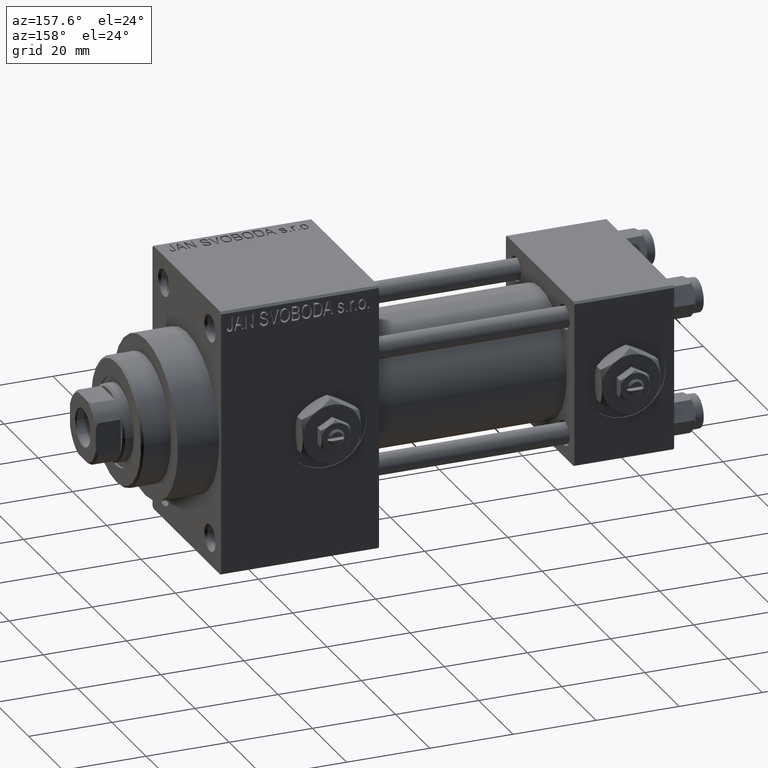
[diagram: clean part render]
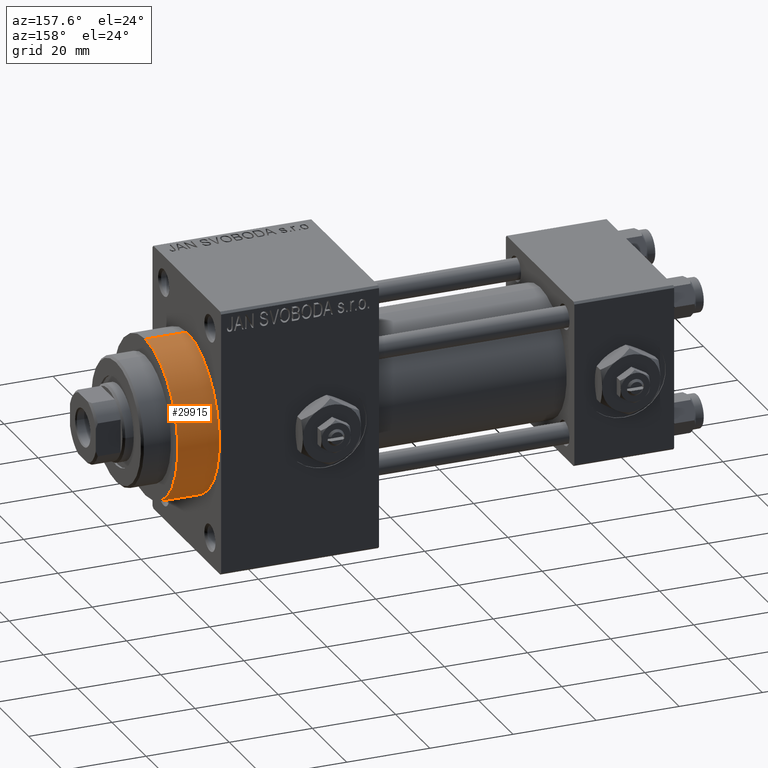
[diagram: same view with one face highlighted and labeled with its STEP entity id]
A machine part, auxiliary view. The second image highlights one B-rep face of the part: STEP entity #29915.
In plain terms, the highlighted cylindrical surface (partial cylindrical patch) has radius 19 mm, axis along (-1, -0, -0).
Its self-contained STEP definition (entity closure, byte-faithful):
#844 = CARTESIAN_POINT ( 'NONE',  ( 119.0000000000000142, 0.000000000000000000, 0.000000000000000000 ) ) ;
#3665 = EDGE_CURVE ( 'NONE', #22661, #48439, #44185, .T. ) ;
#3811 = DIRECTION ( 'NONE',  ( 1.000000000000000000, 0.000000000000000000, 0.000000000000000000 ) ) ;
#4081 = CYLINDRICAL_SURFACE ( 'NONE', #36028, 19.00000000000000000 ) ;
#4531 = DIRECTION ( 'NONE',  ( 0.000000000000000000, 0.000000000000000000, -1.000000000000000000 ) ) ;
#5385 = CIRCLE ( 'NONE', #37029, 19.00000000000000000 ) ;
#6525 = LINE ( 'NONE', #37224, #31615 ) ;
#9088 = LINE ( 'NONE', #27661, #32885 ) ;
#10065 = EDGE_CURVE ( 'NONE', #48439, #47141, #6525, .T. ) ;
#11517 = FACE_OUTER_BOUND ( 'NONE', #39811, .T. ) ;
#12637 = CARTESIAN_POINT ( 'NONE',  ( 109.0000000000000142, 0.000000000000000000, 19.00000000000000000 ) ) ;
#15439 = CARTESIAN_POINT ( 'NONE',  ( 119.0000000000000142, 0.000000000000000000, 0.000000000000000000 ) ) ;
#16769 = CARTESIAN_POINT ( 'NONE',  ( 119.0000000000000142, 0.000000000000000000, 19.00000000000000000 ) ) ;
#17795 = ORIENTED_EDGE ( 'NONE', *, *, #3665, .F. ) ;
#19719 = CARTESIAN_POINT ( 'NONE',  ( 109.0000000000000142, 0.000000000000000000, 0.000000000000000000 ) ) ;
#22278 = ORIENTED_EDGE ( 'NONE', *, *, #37597, .T. ) ;
#22661 = VERTEX_POINT ( 'NONE', #28310 ) ;
#24195 = DIRECTION ( 'NONE',  ( -1.000000000000000000, -0.000000000000000000, -0.000000000000000000 ) ) ;
#26615 = DIRECTION ( 'NONE',  ( 0.000000000000000000, 0.000000000000000000, 1.000000000000000000 ) ) ;
#27099 = DIRECTION ( 'NONE',  ( -1.000000000000000000, -0.000000000000000000, -0.000000000000000000 ) ) ;
#27154 = VERTEX_POINT ( 'NONE', #42776 ) ;
#27661 = CARTESIAN_POINT ( 'NONE',  ( 119.0000000000000142, 2.326828918379970970E-15, -19.00000000000000000 ) ) ;
#28310 = CARTESIAN_POINT ( 'NONE',  ( 119.0000000000000142, 2.326828918379970970E-15, -19.00000000000000000 ) ) ;
#29915 = ADVANCED_FACE ( 'NONE', ( #11517 ), #4081, .T. ) ;
#31615 = VECTOR ( 'NONE', #44661, 1000.000000000000000 ) ;
#31809 = DIRECTION ( 'NONE',  ( 0.000000000000000000, 0.000000000000000000, -1.000000000000000000 ) ) ;
#32885 = VECTOR ( 'NONE', #24195, 1000.000000000000000 ) ;
#34805 = DIRECTION ( 'NONE',  ( 1.000000000000000000, 0.000000000000000000, 0.000000000000000000 ) ) ;
#36028 = AXIS2_PLACEMENT_3D ( 'NONE', #844, #27099, #26615 ) ;
#37029 = AXIS2_PLACEMENT_3D ( 'NONE', #19719, #34805, #31809 ) ;
#37224 = CARTESIAN_POINT ( 'NONE',  ( 119.0000000000000142, 0.000000000000000000, 19.00000000000000000 ) ) ;
#37597 = EDGE_CURVE ( 'NONE', #27154, #47141, #5385, .T. ) ;
#39811 = EDGE_LOOP ( 'NONE', ( #17795, #41100, #22278, #44592 ) ) ;
#41100 = ORIENTED_EDGE ( 'NONE', *, *, #48390, .T. ) ;
#42776 = CARTESIAN_POINT ( 'NONE',  ( 109.0000000000000142, 2.326828918379970970E-15, -19.00000000000000000 ) ) ;
#43379 = AXIS2_PLACEMENT_3D ( 'NONE', #15439, #3811, #4531 ) ;
#44185 = CIRCLE ( 'NONE', #43379, 19.00000000000000000 ) ;
#44592 = ORIENTED_EDGE ( 'NONE', *, *, #10065, .F. ) ;
#44661 = DIRECTION ( 'NONE',  ( -1.000000000000000000, -0.000000000000000000, -0.000000000000000000 ) ) ;
#47141 = VERTEX_POINT ( 'NONE', #12637 ) ;
#48390 = EDGE_CURVE ( 'NONE', #22661, #27154, #9088, .T. ) ;
#48439 = VERTEX_POINT ( 'NONE', #16769 ) ;